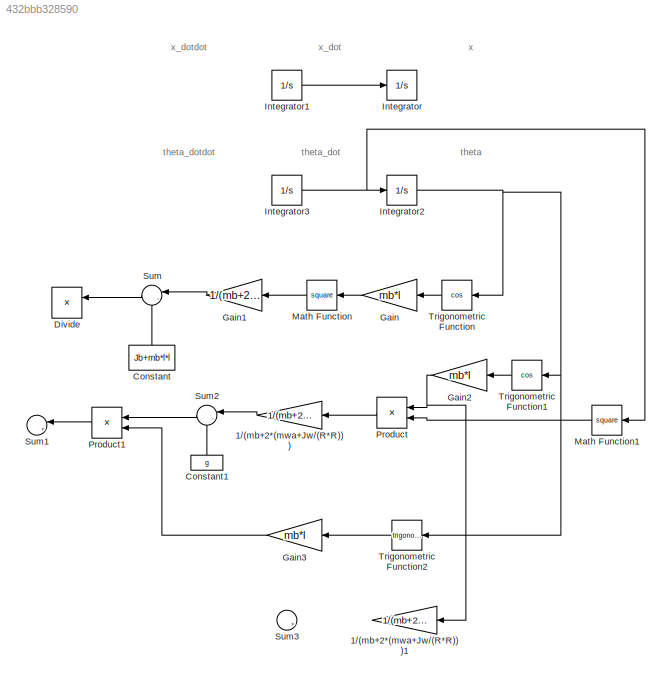
MODEL slx_432bbb328590
KIND model
CONFIG AbsTol = auto
CONFIG EnableMultiTasking = off
CONFIG FixedStep = auto
CONFIG MaxStep = auto
CONFIG MinStep = auto
CONFIG RelTol = 1e-3
CONFIG SampleTimeConstraint = Unconstrained
CONFIG Solver = VariableStepAuto
CONFIG SolverName = VariableStepAuto
CONFIG StartTime = 0.0
CONFIG StopTime = 10.0
BLOCK [Gain] 1//(mb+2*(mwa+Jw//(R*R)))
  Gain = 1/(mb+2*(mwa+Jw/(R*R)))
BLOCK [Gain] 1//(mb+2*(mwa+Jw//(R*R)))1
  Gain = 1/(mb+2*(mwa+Jw/(R*R)))
BLOCK [Constant] Constant
  NameLocation = right
  Value = Jb+mb*l*l
BLOCK [Constant] Constant1
  NameLocation = right
  Value = g
BLOCK [Product] Divide
  Inputs = /*
  NameLocation = top
  Ports = [2, 1]
BLOCK [Gain] Gain
  Gain = mb*l
BLOCK [Gain] Gain1
  Gain = 1/(mb+2*(mwa+Jw/(R*R)))
BLOCK [Gain] Gain2
  Gain = mb*l
BLOCK [Gain] Gain3
  Gain = mb*l
BLOCK [Integrator] Integrator
  Ports = [1, 1]
BLOCK [Integrator] Integrator1
  Ports = [1, 1]
BLOCK [Integrator] Integrator2
  Ports = [1, 1]
BLOCK [Integrator] Integrator3
  Ports = [1, 1]
BLOCK [Math] Math Function
  Operator = square
  Ports = [1, 1]
BLOCK [Math] Math Function1
  Operator = square
  Ports = [1, 1]
BLOCK [Product] Product
  NameLocation = top
  Ports = [2, 1]
BLOCK [Product] Product1
  NameLocation = top
  Ports = [2, 1]
BLOCK [Sum] Sum
  Inputs = |-+
  Ports = [2, 1]
BLOCK [Sum] Sum1
  Inputs = |+-
  Ports = [2, 1]
BLOCK [Sum] Sum2
  Inputs = |-+
  Ports = [2, 1]
BLOCK [Sum] Sum3
  Inputs = |+-
  Ports = [2, 1]
BLOCK [Trigonometry] Trigonometric Function
  NameLocation = top
  Operator = cos
  Ports = [1, 1]
BLOCK [Trigonometry] Trigonometric Function1
  NameLocation = top
  Operator = cos
  Ports = [1, 1]
BLOCK [Trigonometry] Trigonometric Function2
  NameLocation = top
  Ports = [1, 1]
ANNOTATION (root): theta
ANNOTATION (root): theta_dot
ANNOTATION (root): theta_dotdot
ANNOTATION (root): x
ANNOTATION (root): x_dot
ANNOTATION (root): x_dotdot
LINE 1//(mb+2*(mwa+Jw//(R*R))):1 -> Sum2:1
LINE Constant1:1 -> Sum2:2
LINE Constant:1 -> Sum:2
LINE Gain1:1 -> Sum:1
NET Gain2:1 -> 1//(mb+2*(mwa+Jw//(R*R)))1:1, Product:1
LINE Gain3:1 -> Product1:2
LINE Gain:1 -> Math Function:1
LINE Integrator1:1 -> Integrator:1
NET Integrator2:1 -> Trigonometric Function1:1, Trigonometric Function2:1, Trigonometric Function:1
NET Integrator3:1 -> Integrator2:1, Math Function1:1
LINE Math Function1:1 -> Product:2
LINE Math Function:1 -> Gain1:1
LINE Product1:1 -> Sum1:1
LINE Product:1 -> 1//(mb+2*(mwa+Jw//(R*R))):1
LINE Sum2:1 -> Product1:1
LINE Sum:1 -> Divide:1
LINE Trigonometric Function1:1 -> Gain2:1
LINE Trigonometric Function2:1 -> Gain3:1
LINE Trigonometric Function:1 -> Gain:1
note: NET lines group one-source signal fan-out (src -> all destinations, sorted); 1:1 wires keep LINE
